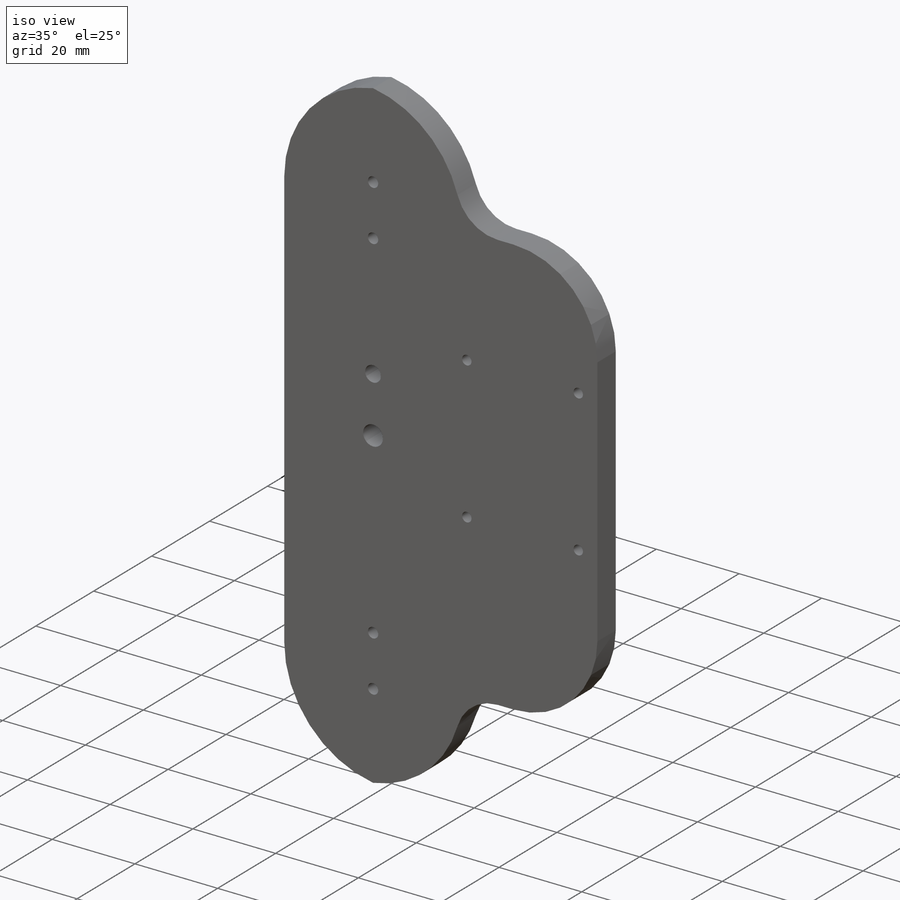
[diagram: iso view]
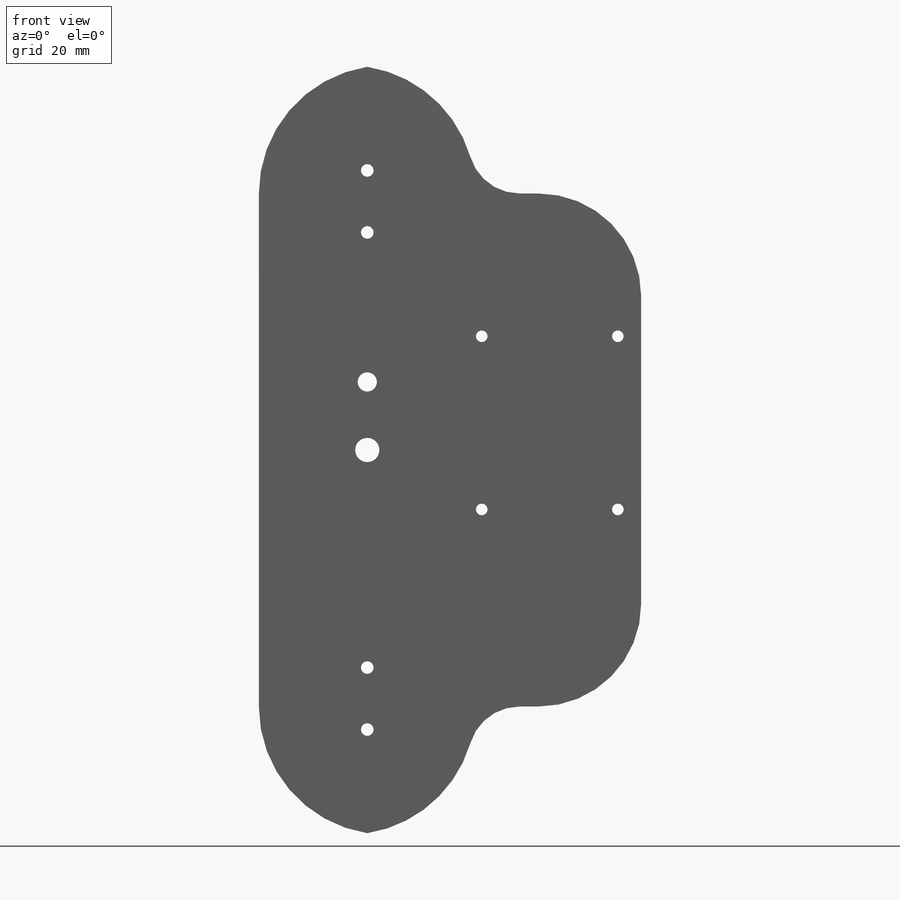
[diagram: front view]
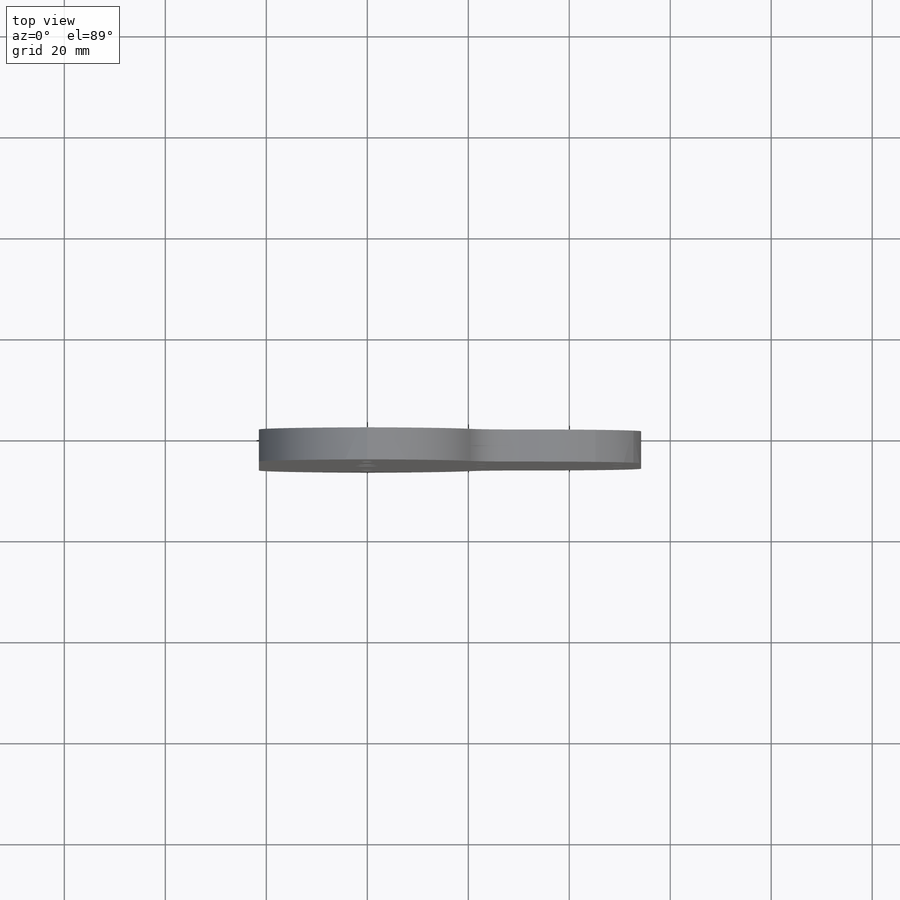
[diagram: top view]
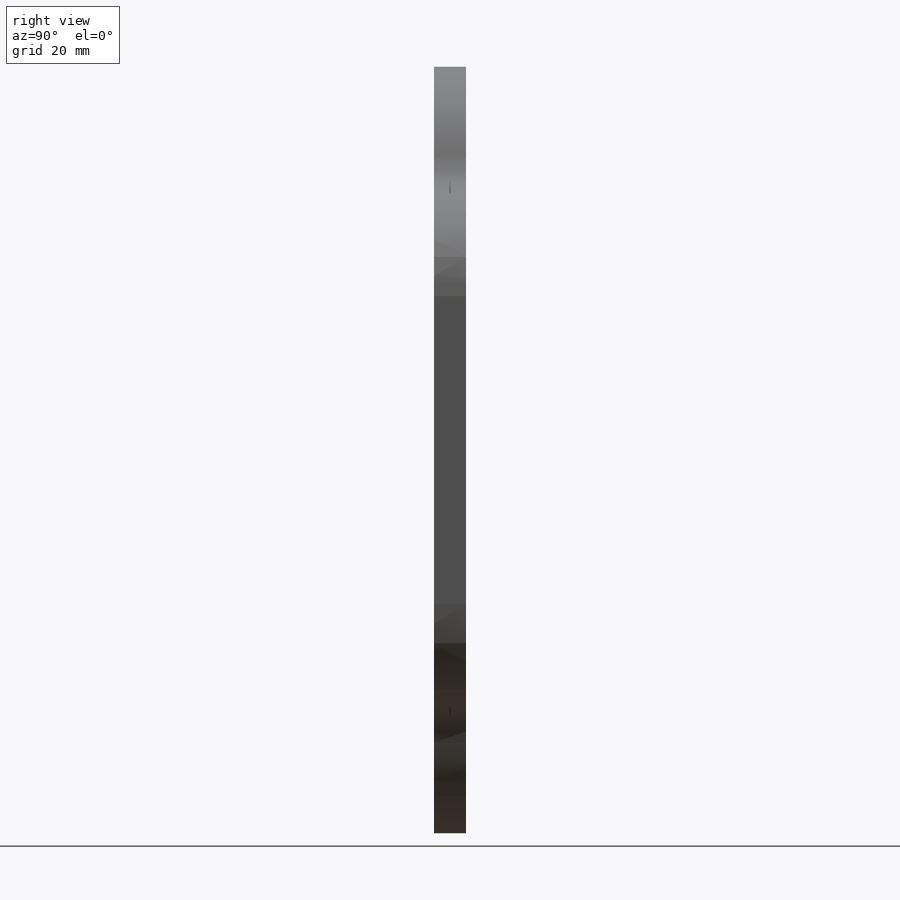
[diagram: right view]
SOLIDWORKS PART (.sldprt)
format: sldprt  version: not decoded by parser v0  size: 289,280 bytes
history: native  units: mm
features: sketch x9, fillet x3, extrude x2, cut_extrude x2, hole x2, material x1 (+11 scaffold rows collapsed)
feature tree (30):
  scaffold x11  (default folders/planes/origin — collapsed)
  material  "Material <not specified>"
  sketch  "Sketch1"  dims[D1=152.4mm D2=42.9514mm]
  extrude  "Boss-Extrude1"  Depth=6.35mm
  sketch  "Sketch2"  dims[D1=4.8006mm D3=3.81mm D2=17.78mm]
  cut_extrude  "Cut-Extrude1"  [1 undecoded]
  sketch  "Sketch3"  dims[D1=3.8862mm D2=3.8862mm D3=3.8862mm D4=3.8862mm D5=8.382mm D6=8.382mm D7=82.296mm D8=41.148mm]
  hole  "#12 (0.189) Diameter Hole3"  Diameter=4.8006mm Depth=6.35mm
  sketch  "Sketch11"
  sketch  "Sketch10"  dims[hole-wizard template sketch: 59 standard entries collapsed; hole parameters kept: c18.Thru Hole Dia.=4.8006mm c18.Thru Hole Depth=6.35mm]
  hole  "#40 (0.098) Diameter Hole3"  Diameter=2.4892mm Depth=6.35mm
  sketch  "Sketch17"
  sketch  "Sketch16"  dims[hole-wizard template sketch: 59 standard entries collapsed; hole parameters kept: c18.Thru Hole Dia.=2.4892mm c18.Thru Hole Depth=6.35mm]
  fillet  "Fillet1"  Radius=25.4mm
  sketch  "Sketch20"
  extrude  "Boss-Extrude4"  Depth=32.766mm
  sketch  "Sketch21"  dims[c1.D2=2.286mm c1.D3=2.286mm c1.D4=2.286mm c1.D5=2.286mm c1.D1=3.4798mm c1.D6=~28.815429mm c1.D7=~28.815429mm c2.D6=24.4094mm c2.D7=~22.675015mm c3.D6=32.004mm c3.D7=24.6634mm]
  cut_extrude  "Cut-Extrude2"  [1 undecoded]
  fillet  "Fillet2"  Radius=10.16mm
  fillet  "Fillet3"  Radius=20.32mm
decode coverage: 13 of 18 modeling features carry decoded parameters
note: ~ marks probable driven/reference dimensions
note: 2 parameter values undecoded
note: suppression state not decoded; provenance and decode notes live in map.json
